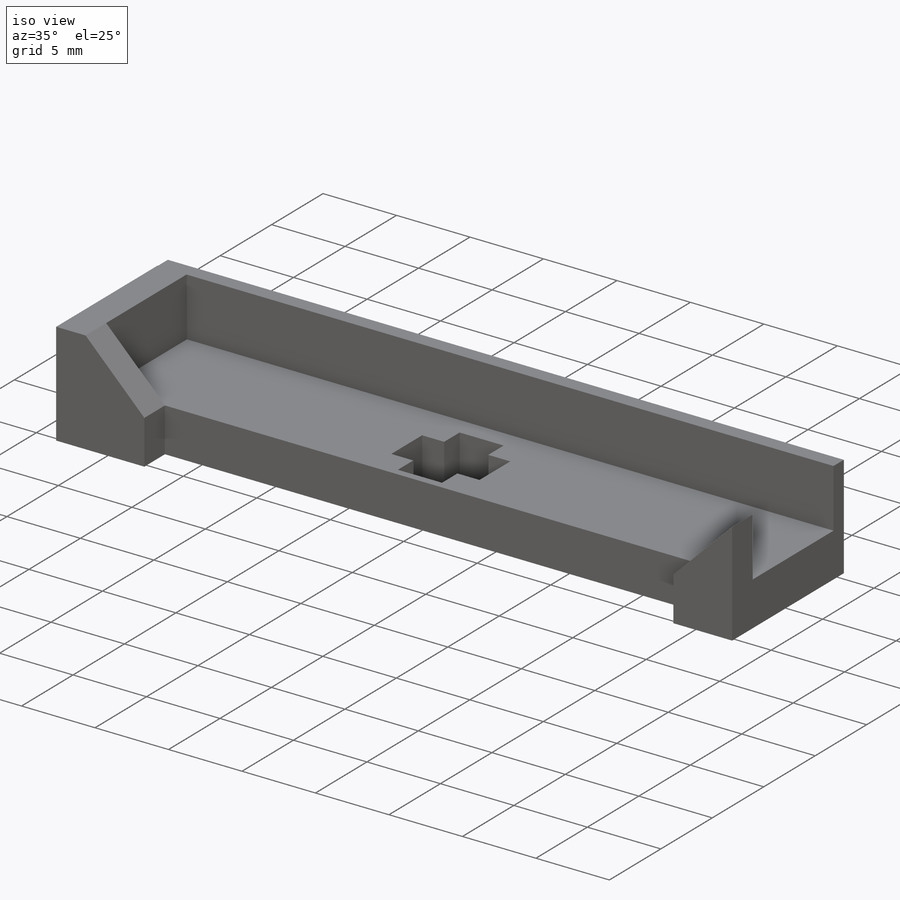
[diagram: iso view]
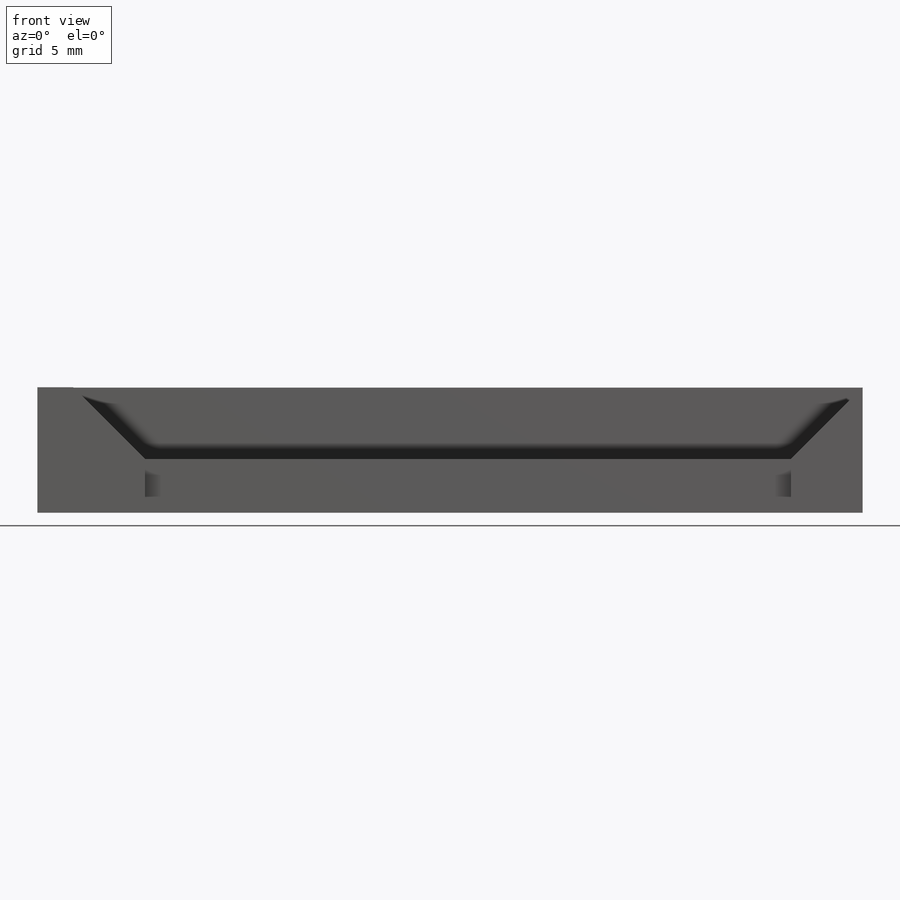
[diagram: front view]
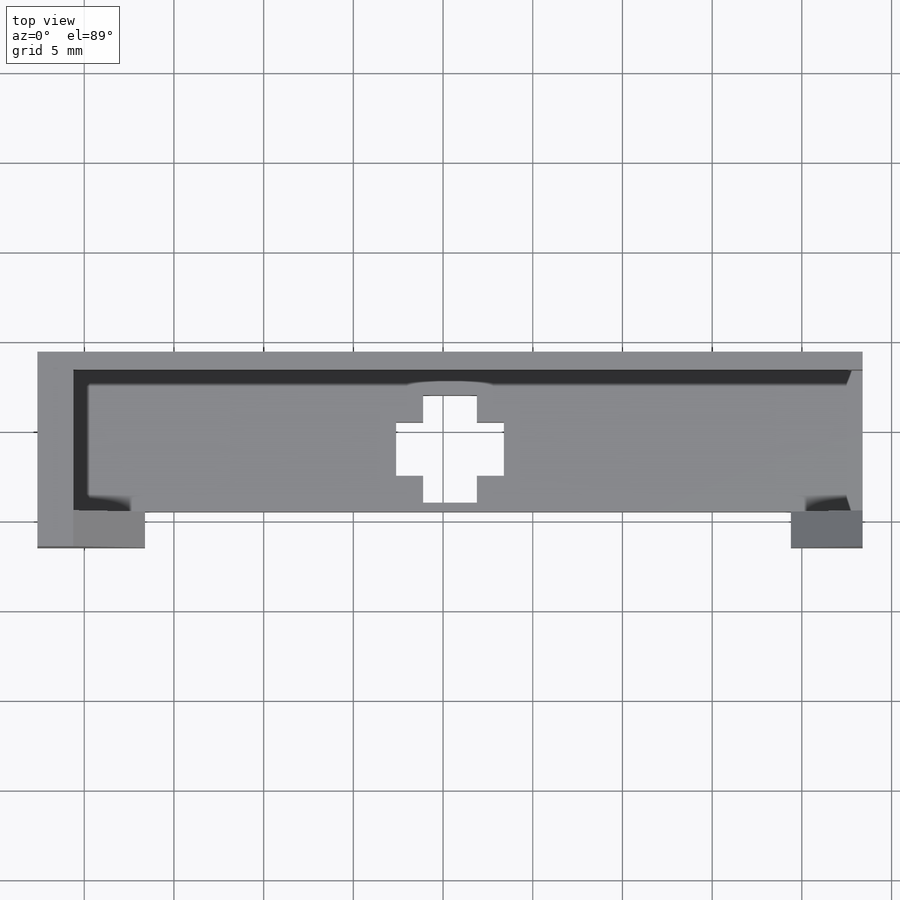
[diagram: top view]
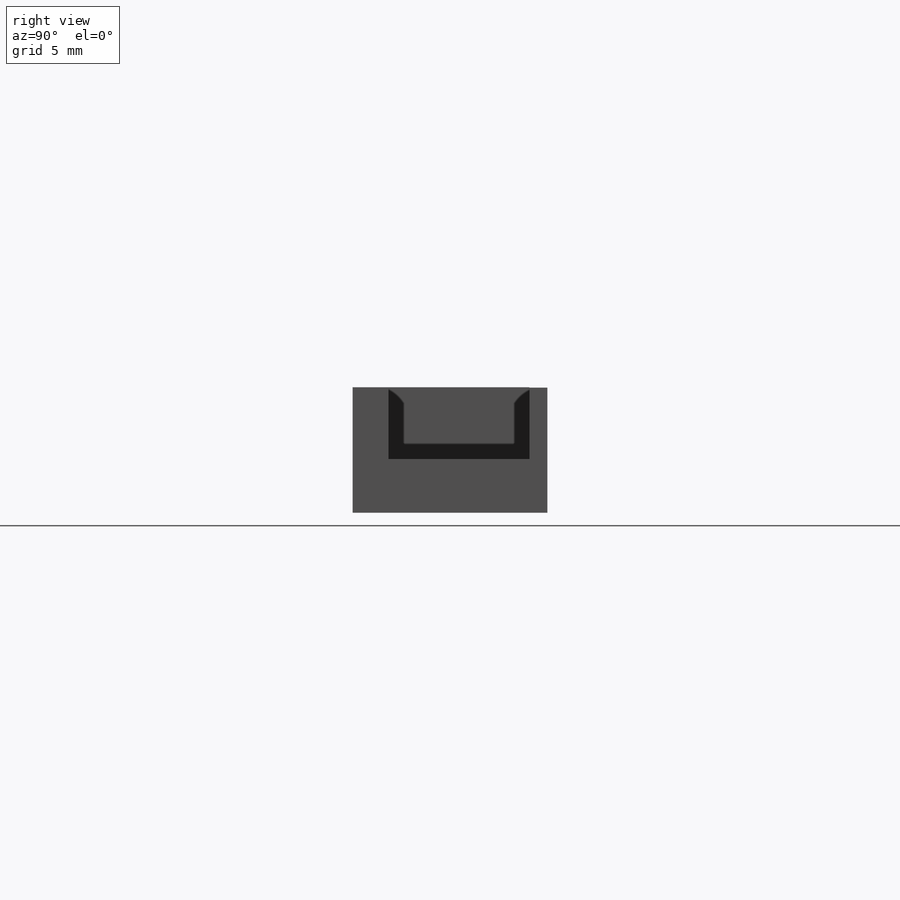
[diagram: right view]
SOLIDWORKS PART (.sldprt)
format: sldprt  version: not decoded by parser v0  size: 274,944 bytes
history: native  units: mm
features: sketch x7, extrude x5, plane x3, cut_extrude x2, material x1 (+9 scaffold rows collapsed)
feature tree (27):
  scaffold x9  (default folders/planes/origin — collapsed)
  material  "材质 <未指定>"
  plane  "前视基准面"
  plane  "上视基准面"
  plane  "右视基准面"
  sketch  "草图1"  dims[c1.D1=44.0mm c1.D2=44.0mm c2.D1=44.0mm c2.D2=7.85mm]
  extrude  "凸台-拉伸1"  Depth=3mm
  sketch  "草图2"  dims[D1=7.0mm]
  extrude  "凸台-拉伸2"  Depth=2mm
  sketch  "草图3"  dims[D1=4.0mm D2=4.0mm]
  extrude  "凸台-拉伸3"  Depth=2mm
  sketch  "草图4"  dims[c1.D1=7.0mm c1.D2=7.0mm c2.D1=4.0mm]
  extrude  "凸台-拉伸4"  Depth=2mm
  sketch  "草图5"
  extrude  "凸台-拉伸5"  Depth=1mm
  sketch  "草图6"  dims[D1=3.0mm D2=6.0mm D3=2.0mm D4=20.0mm]
  cut_extrude  "切除-拉伸3"  Depth=3mm
  sketch  "草图8"  dims[D1=1.5mm D2=1.5mm D3=1.5mm D4=1.5mm D5=3.0mm]
  cut_extrude  "切除-拉伸4"  Depth=3mm
decode coverage: 13 of 14 modeling features carry decoded parameters
note: suppression state not decoded; provenance and decode notes live in map.json
